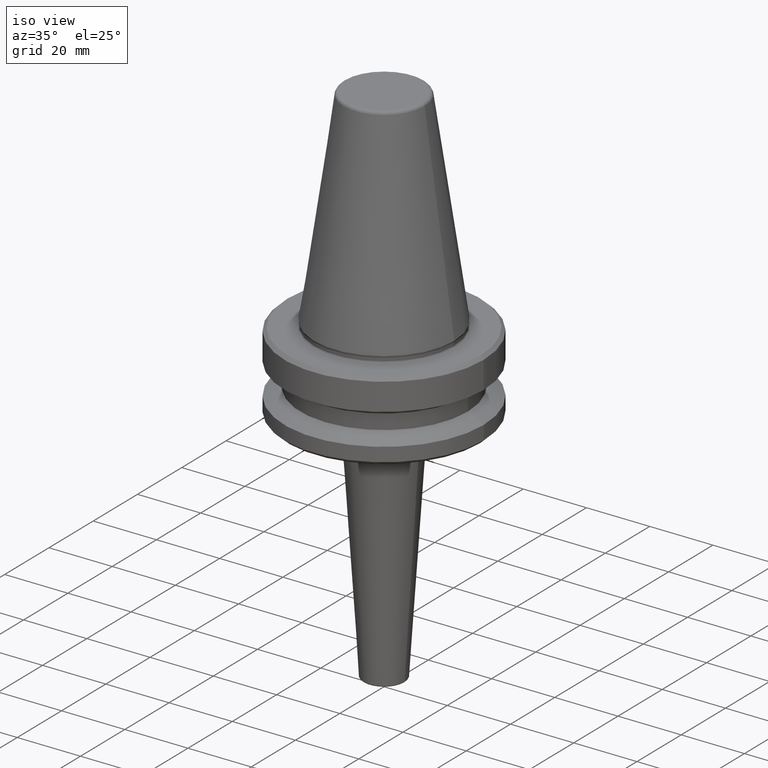
[diagram: clean part render]
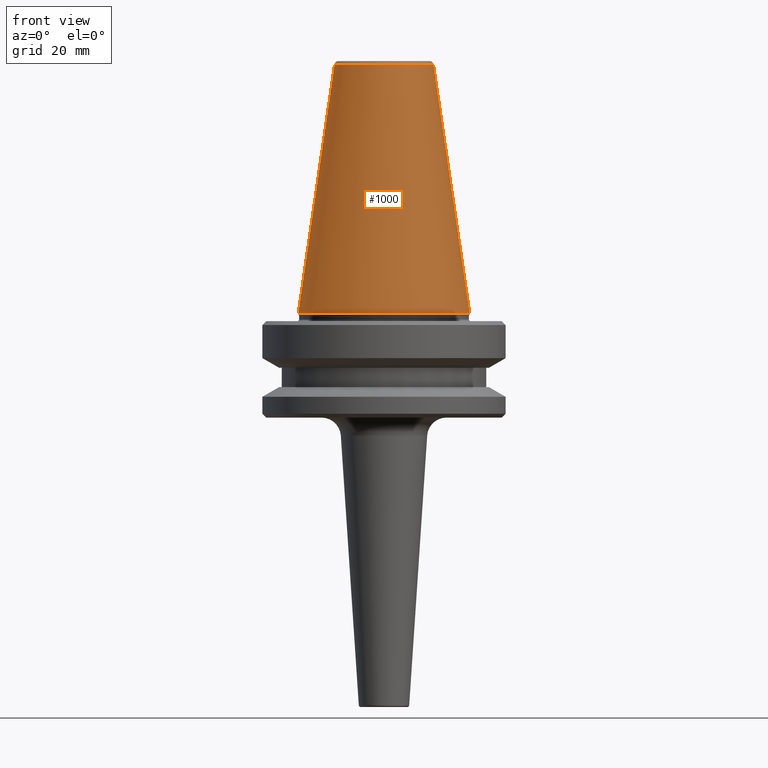
[diagram: tour spotlight — one face highlighted and labeled with its STEP entity id]
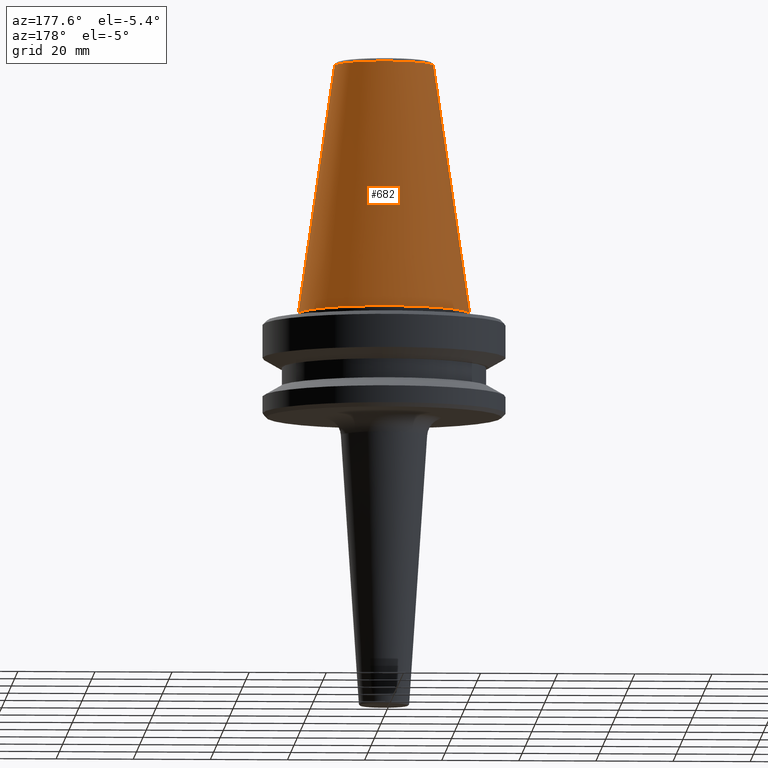
[diagram: tour spotlight — one face highlighted and labeled with its STEP entity id]
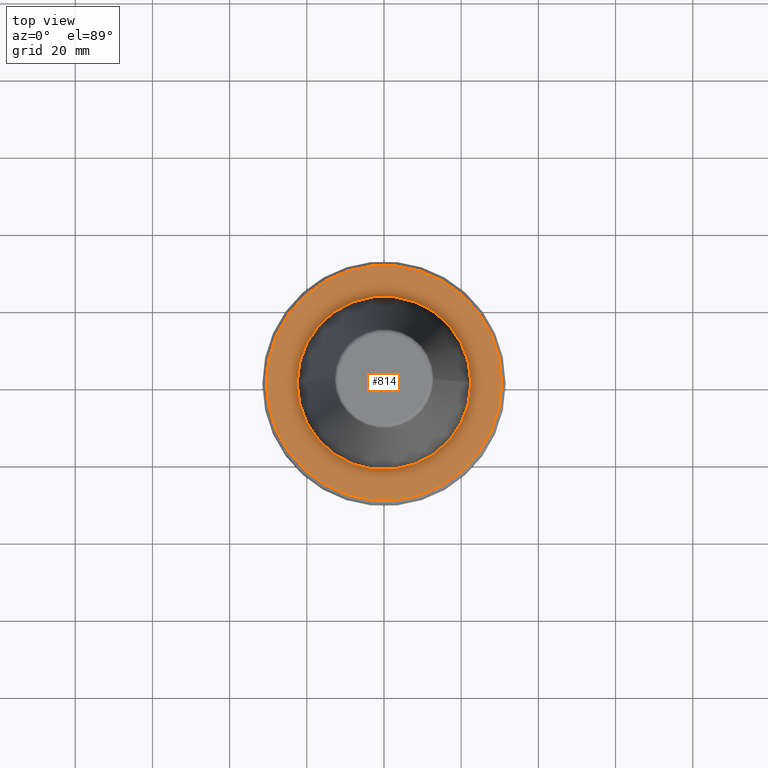
[diagram: tour spotlight — one face highlighted and labeled with its STEP entity id]
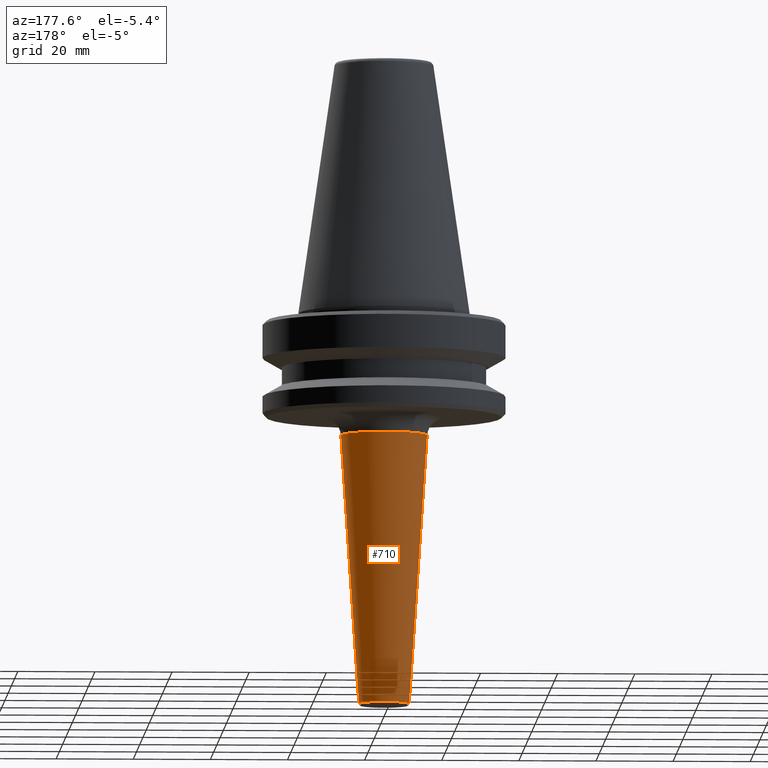
[diagram: tour spotlight — one face highlighted and labeled with its STEP entity id]
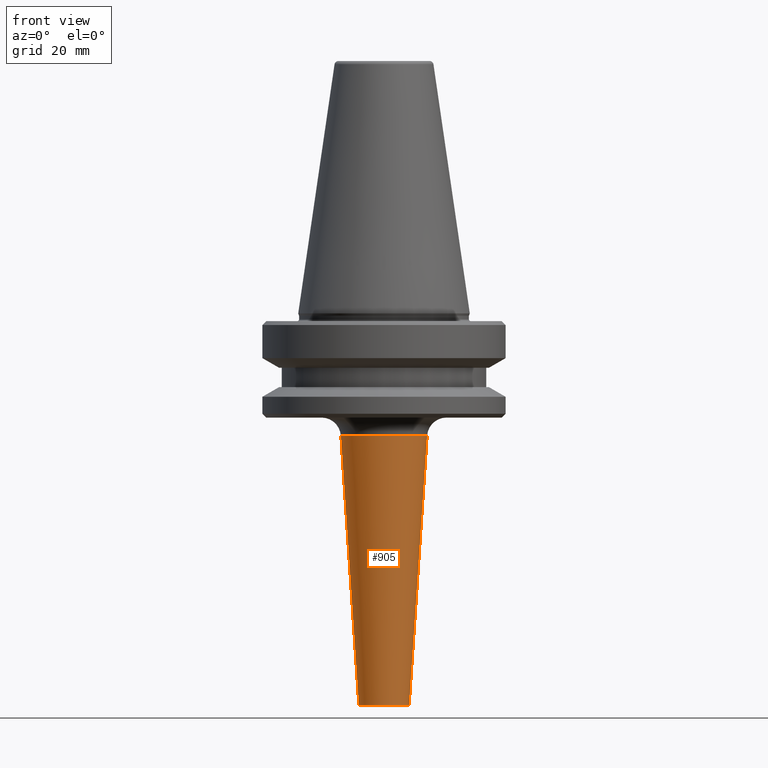
[diagram: tour spotlight — one face highlighted and labeled with its STEP entity id]
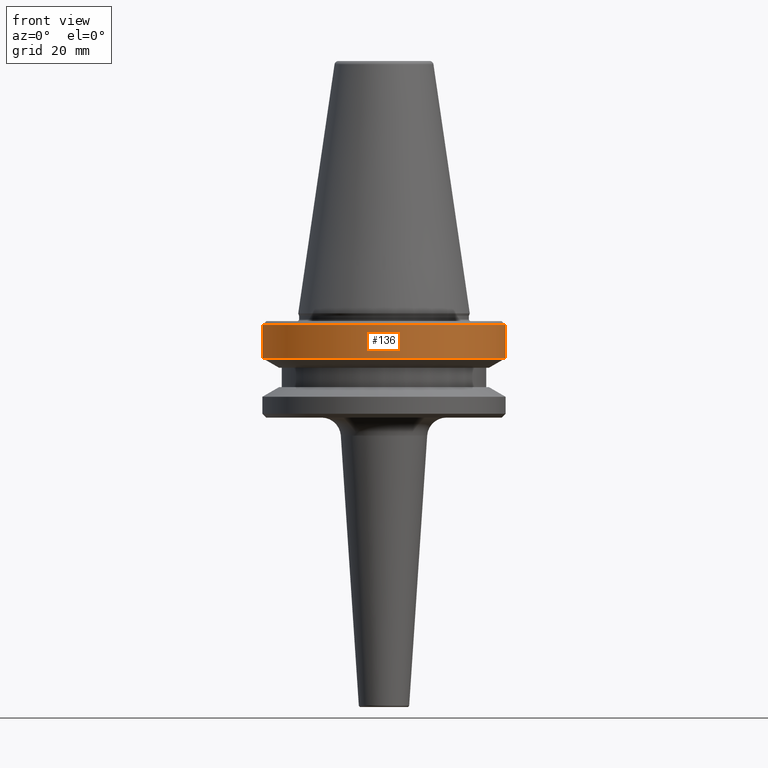
[diagram: tour spotlight — one face highlighted and labeled with its STEP entity id]
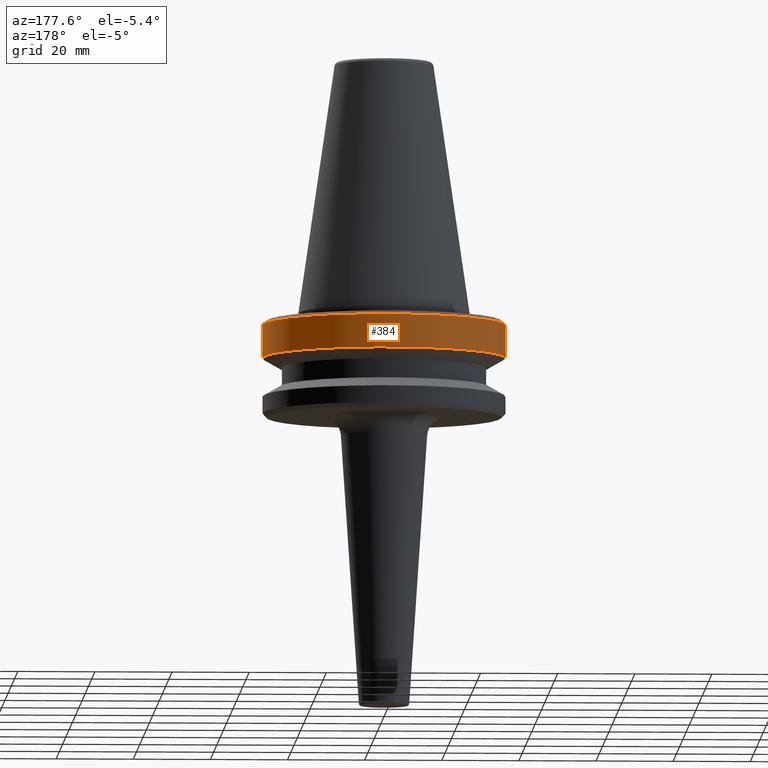
[diagram: tour spotlight — one face highlighted and labeled with its STEP entity id]
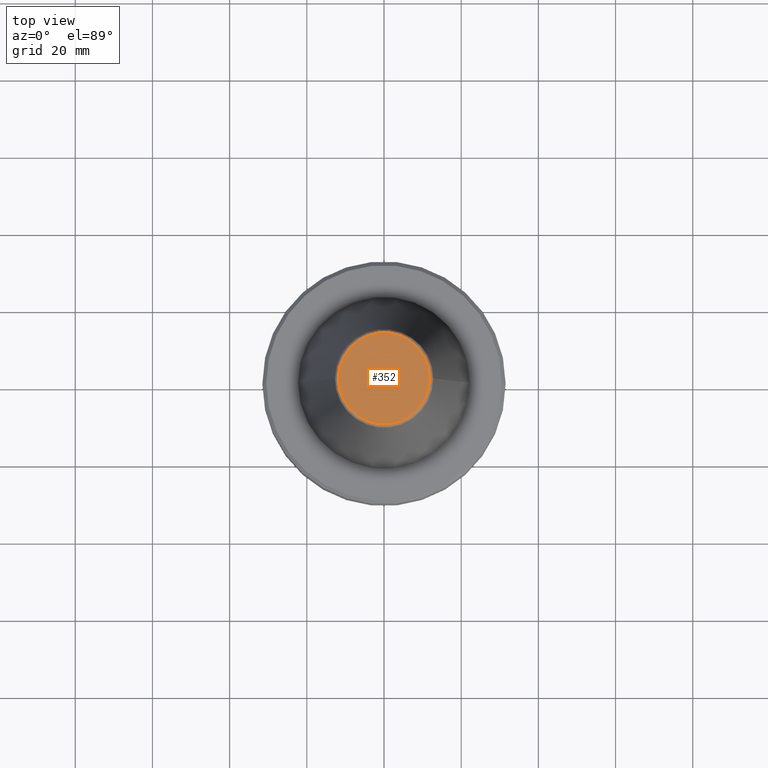
[diagram: tour spotlight — one face highlighted and labeled with its STEP entity id]
A machine part: a face-by-face anatomy tour. The part has 38 B-rep faces; the first image is the clean iso view, then the 8 largest visible faces are spotlighted one at a time (largest first), each with its STEP entity span.

Face 1 — front view, entity #1000. In plain terms, the highlighted conical surface has half-angle 8.297 deg.
Definition (entity closure, byte-faithful):
#28 = CARTESIAN_POINT ( 'NONE',  ( 12.81220206925736900, 2.145409868259749100E-015, -0.8556918111122247000 ) ) ;
#32 = EDGE_CURVE ( 'NONE', #82, #697, #306, .T. ) ;
#82 = VERTEX_POINT ( 'NONE', #517 ) ;
#92 = CONICAL_SURFACE ( 'NONE', #523, 12.81220206925736900, 0.1448138077623198300 ) ;
#94 = DIRECTION ( 'NONE',  ( -0.1443081888881795900, 0.0000000000000000000, -0.9895327920891826600 ) ) ;
#97 = EDGE_LOOP ( 'NONE', ( #888, #815, #692, #746 ) ) ;
#104 = DIRECTION ( 'NONE',  ( 1.000000000000000000, 0.0000000000000000000, 0.0000000000000000000 ) ) ;
#148 = VECTOR ( 'NONE', #94, 1000.000000000000000 ) ;
#203 = EDGE_CURVE ( 'NONE', #622, #635, #550, .T. ) ;
#238 = LINE ( 'NONE', #885, #631 ) ;
#306 = CIRCLE ( 'NONE', #1010, 22.22499999999993700 ) ;
#336 = CARTESIAN_POINT ( 'NONE',  ( 0.0000000000000000000, 0.0000000000000000000, -0.8556918111122247000 ) ) ;
#353 = DIRECTION ( 'NONE',  ( -0.0000000000000000000, -0.0000000000000000000, 1.000000000000000000 ) ) ;
#368 = CARTESIAN_POINT ( 'NONE',  ( -12.81220206925736900, 0.0000000000000000000, -0.8556918111122247000 ) ) ;
#517 = CARTESIAN_POINT ( 'NONE',  ( -22.22499999999993700, 2.721777511104985000E-015, -65.40000000000057400 ) ) ;
#523 = AXIS2_PLACEMENT_3D ( 'NONE', #812, #559, #883 ) ;
#550 = CIRCLE ( 'NONE', #621, 12.81220206925736900 ) ;
#559 = DIRECTION ( 'NONE',  ( 0.0000000000000000000, 0.0000000000000000000, -1.000000000000000000 ) ) ;
#577 = FACE_OUTER_BOUND ( 'NONE', #97, .T. ) ;
#600 = CARTESIAN_POINT ( 'NONE',  ( 22.22499999999993700, 0.0000000000000000000, -65.40000000000057400 ) ) ;
#621 = AXIS2_PLACEMENT_3D ( 'NONE', #336, #877, #104 ) ;
#622 = VERTEX_POINT ( 'NONE', #368 ) ;
#631 = VECTOR ( 'NONE', #723, 1000.000000000000000 ) ;
#635 = VERTEX_POINT ( 'NONE', #28 ) ;
#661 = CARTESIAN_POINT ( 'NONE',  ( -12.81220206925736900, 0.0000000000000000000, -0.8556918111122247000 ) ) ;
#666 = CARTESIAN_POINT ( 'NONE',  ( 0.0000000000000000000, 0.0000000000000000000, -65.40000000000057400 ) ) ;
#672 = EDGE_CURVE ( 'NONE', #635, #697, #238, .T. ) ;
#692 = ORIENTED_EDGE ( 'NONE', *, *, #988, .T. ) ;
#697 = VERTEX_POINT ( 'NONE', #600 ) ;
#723 = DIRECTION ( 'NONE',  ( 0.1443081888881795900, 1.767265616126607700E-017, -0.9895327920891826600 ) ) ;
#741 = DIRECTION ( 'NONE',  ( 1.000000000000000000, 0.0000000000000000000, 0.0000000000000000000 ) ) ;
#746 = ORIENTED_EDGE ( 'NONE', *, *, #32, .T. ) ;
#808 = LINE ( 'NONE', #661, #148 ) ;
#812 = CARTESIAN_POINT ( 'NONE',  ( 0.0000000000000000000, 0.0000000000000000000, -0.8556918111122247000 ) ) ;
#815 = ORIENTED_EDGE ( 'NONE', *, *, #203, .F. ) ;
#877 = DIRECTION ( 'NONE',  ( -0.0000000000000000000, -0.0000000000000000000, 1.000000000000000000 ) ) ;
#883 = DIRECTION ( 'NONE',  ( -1.000000000000000000, 0.0000000000000000000, 0.0000000000000000000 ) ) ;
#885 = CARTESIAN_POINT ( 'NONE',  ( 12.81220206925736900, 1.569042225414513200E-015, -0.8556918111122247000 ) ) ;
#888 = ORIENTED_EDGE ( 'NONE', *, *, #672, .F. ) ;
#988 = EDGE_CURVE ( 'NONE', #622, #82, #808, .T. ) ;
#1000 = ADVANCED_FACE ( 'NONE', ( #577 ), #92, .T. ) ;
#1010 = AXIS2_PLACEMENT_3D ( 'NONE', #666, #353, #741 ) ;

Face 2 — auxiliary view, entity #682. In plain terms, the highlighted conical surface has half-angle 8.297 deg.
Definition (entity closure, byte-faithful):
#13 = FACE_OUTER_BOUND ( 'NONE', #102, .T. ) ;
#28 = CARTESIAN_POINT ( 'NONE',  ( 12.81220206925736900, 2.145409868259749100E-015, -0.8556918111122247000 ) ) ;
#70 = ORIENTED_EDGE ( 'NONE', *, *, #988, .F. ) ;
#82 = VERTEX_POINT ( 'NONE', #517 ) ;
#94 = DIRECTION ( 'NONE',  ( -0.1443081888881795900, 0.0000000000000000000, -0.9895327920891826600 ) ) ;
#102 = EDGE_LOOP ( 'NONE', ( #737, #398, #166, #70 ) ) ;
#148 = VECTOR ( 'NONE', #94, 1000.000000000000000 ) ;
#166 = ORIENTED_EDGE ( 'NONE', *, *, #1049, .T. ) ;
#188 = CIRCLE ( 'NONE', #1034, 12.81220206925736900 ) ;
#232 = CARTESIAN_POINT ( 'NONE',  ( 0.0000000000000000000, 0.0000000000000000000, -0.8556918111122247000 ) ) ;
#238 = LINE ( 'NONE', #885, #631 ) ;
#312 = AXIS2_PLACEMENT_3D ( 'NONE', #495, #875, #423 ) ;
#368 = CARTESIAN_POINT ( 'NONE',  ( -12.81220206925736900, 0.0000000000000000000, -0.8556918111122247000 ) ) ;
#398 = ORIENTED_EDGE ( 'NONE', *, *, #672, .T. ) ;
#423 = DIRECTION ( 'NONE',  ( 1.000000000000000000, 0.0000000000000000000, 0.0000000000000000000 ) ) ;
#476 = CIRCLE ( 'NONE', #312, 22.22499999999993700 ) ;
#495 = CARTESIAN_POINT ( 'NONE',  ( 0.0000000000000000000, 0.0000000000000000000, -65.40000000000057400 ) ) ;
#517 = CARTESIAN_POINT ( 'NONE',  ( -22.22499999999993700, 2.721777511104985000E-015, -65.40000000000057400 ) ) ;
#544 = DIRECTION ( 'NONE',  ( 1.000000000000000000, 0.0000000000000000000, 0.0000000000000000000 ) ) ;
#590 = CONICAL_SURFACE ( 'NONE', #979, 12.81220206925736900, 0.1448138077623198300 ) ;
#600 = CARTESIAN_POINT ( 'NONE',  ( 22.22499999999993700, 0.0000000000000000000, -65.40000000000057400 ) ) ;
#622 = VERTEX_POINT ( 'NONE', #368 ) ;
#631 = VECTOR ( 'NONE', #723, 1000.000000000000000 ) ;
#635 = VERTEX_POINT ( 'NONE', #28 ) ;
#661 = CARTESIAN_POINT ( 'NONE',  ( -12.81220206925736900, 0.0000000000000000000, -0.8556918111122247000 ) ) ;
#672 = EDGE_CURVE ( 'NONE', #635, #697, #238, .T. ) ;
#682 = ADVANCED_FACE ( 'NONE', ( #13 ), #590, .T. ) ;
#697 = VERTEX_POINT ( 'NONE', #600 ) ;
#700 = DIRECTION ( 'NONE',  ( -0.0000000000000000000, -0.0000000000000000000, 1.000000000000000000 ) ) ;
#723 = DIRECTION ( 'NONE',  ( 0.1443081888881795900, 1.767265616126607700E-017, -0.9895327920891826600 ) ) ;
#735 = EDGE_CURVE ( 'NONE', #635, #622, #188, .T. ) ;
#737 = ORIENTED_EDGE ( 'NONE', *, *, #735, .F. ) ;
#747 = DIRECTION ( 'NONE',  ( -1.000000000000000000, 0.0000000000000000000, 0.0000000000000000000 ) ) ;
#808 = LINE ( 'NONE', #661, #148 ) ;
#875 = DIRECTION ( 'NONE',  ( -0.0000000000000000000, -0.0000000000000000000, 1.000000000000000000 ) ) ;
#885 = CARTESIAN_POINT ( 'NONE',  ( 12.81220206925736900, 1.569042225414513200E-015, -0.8556918111122247000 ) ) ;
#890 = CARTESIAN_POINT ( 'NONE',  ( 0.0000000000000000000, 0.0000000000000000000, -0.8556918111122247000 ) ) ;
#979 = AXIS2_PLACEMENT_3D ( 'NONE', #890, #983, #747 ) ;
#983 = DIRECTION ( 'NONE',  ( 0.0000000000000000000, 0.0000000000000000000, -1.000000000000000000 ) ) ;
#988 = EDGE_CURVE ( 'NONE', #622, #82, #808, .T. ) ;
#1034 = AXIS2_PLACEMENT_3D ( 'NONE', #232, #700, #544 ) ;
#1049 = EDGE_CURVE ( 'NONE', #697, #82, #476, .T. ) ;

Face 3 — top view, entity #814. In plain terms, the highlighted planar face has unit normal (0, 0, -1).
Definition (entity closure, byte-faithful):
#73 = DIRECTION ( 'NONE',  ( 0.0000000000000000000, 0.0000000000000000000, -1.000000000000000000 ) ) ;
#81 = AXIS2_PLACEMENT_3D ( 'NONE', #757, #73, #366 ) ;
#111 = AXIS2_PLACEMENT_3D ( 'NONE', #637, #162, #1044 ) ;
#162 = DIRECTION ( 'NONE',  ( -0.0000000000000000000, -0.0000000000000000000, 1.000000000000000000 ) ) ;
#174 = DIRECTION ( 'NONE',  ( -0.0000000000000000000, -0.0000000000000000000, 1.000000000000000000 ) ) ;
#201 = EDGE_CURVE ( 'NONE', #365, #490, #341, .T. ) ;
#235 = FACE_OUTER_BOUND ( 'NONE', #314, .T. ) ;
#260 = CARTESIAN_POINT ( 'NONE',  ( 0.0000000000000000000, 0.0000000000000000000, -67.40000000000034700 ) ) ;
#280 = CARTESIAN_POINT ( 'NONE',  ( 0.0000000000000000000, 0.0000000000000000000, -67.40000000000034700 ) ) ;
#290 = ORIENTED_EDGE ( 'NONE', *, *, #471, .F. ) ;
#314 = EDGE_LOOP ( 'NONE', ( #552, #762 ) ) ;
#321 = AXIS2_PLACEMENT_3D ( 'NONE', #574, #617, #693 ) ;
#333 = EDGE_LOOP ( 'NONE', ( #290, #343 ) ) ;
#341 = CIRCLE ( 'NONE', #321, 30.49999999999997200 ) ;
#343 = ORIENTED_EDGE ( 'NONE', *, *, #995, .F. ) ;
#365 = VERTEX_POINT ( 'NONE', #586 ) ;
#366 = DIRECTION ( 'NONE',  ( -1.000000000000000000, 0.0000000000000000000, -0.0000000000000000000 ) ) ;
#442 = DIRECTION ( 'NONE',  ( -0.0000000000000000000, -0.0000000000000000000, 1.000000000000000000 ) ) ;
#459 = AXIS2_PLACEMENT_3D ( 'NONE', #280, #442, #651 ) ;
#471 = EDGE_CURVE ( 'NONE', #519, #547, #1013, .T. ) ;
#490 = VERTEX_POINT ( 'NONE', #806 ) ;
#519 = VERTEX_POINT ( 'NONE', #873 ) ;
#547 = VERTEX_POINT ( 'NONE', #991 ) ;
#552 = ORIENTED_EDGE ( 'NONE', *, *, #201, .T. ) ;
#574 = CARTESIAN_POINT ( 'NONE',  ( 0.0000000000000000000, 0.0000000000000000000, -67.40000000000034700 ) ) ;
#586 = CARTESIAN_POINT ( 'NONE',  ( -30.49999999999997200, 0.0000000000000000000, -67.40000000000034700 ) ) ;
#617 = DIRECTION ( 'NONE',  ( -0.0000000000000000000, -0.0000000000000000000, 1.000000000000000000 ) ) ;
#637 = CARTESIAN_POINT ( 'NONE',  ( 0.0000000000000000000, 0.0000000000000000000, -67.40000000000034700 ) ) ;
#651 = DIRECTION ( 'NONE',  ( 1.000000000000000000, 0.0000000000000000000, 0.0000000000000000000 ) ) ;
#655 = DIRECTION ( 'NONE',  ( 1.000000000000000000, 0.0000000000000000000, 0.0000000000000000000 ) ) ;
#693 = DIRECTION ( 'NONE',  ( 1.000000000000000000, 0.0000000000000000000, 0.0000000000000000000 ) ) ;
#757 = CARTESIAN_POINT ( 'NONE',  ( 0.0000000000000000000, 0.0000000000000000000, -67.40000000000034700 ) ) ;
#759 = CIRCLE ( 'NONE', #111, 22.49999999999996400 ) ;
#762 = ORIENTED_EDGE ( 'NONE', *, *, #1024, .T. ) ;
#806 = CARTESIAN_POINT ( 'NONE',  ( 30.49999999999997200, 3.796405077356798300E-015, -67.40000000000034700 ) ) ;
#810 = FACE_BOUND ( 'NONE', #333, .T. ) ;
#814 = ADVANCED_FACE ( 'NONE', ( #810, #235 ), #955, .F. ) ;
#873 = CARTESIAN_POINT ( 'NONE',  ( 22.49999999999996400, 0.0000000000000000000, -67.40000000000034700 ) ) ;
#942 = CIRCLE ( 'NONE', #1050, 30.49999999999997200 ) ;
#955 = PLANE ( 'NONE',  #81 ) ;
#991 = CARTESIAN_POINT ( 'NONE',  ( -22.49999999999996400, 2.755455298081540400E-015, -67.40000000000034700 ) ) ;
#995 = EDGE_CURVE ( 'NONE', #547, #519, #759, .T. ) ;
#1013 = CIRCLE ( 'NONE', #459, 22.49999999999996400 ) ;
#1024 = EDGE_CURVE ( 'NONE', #490, #365, #942, .T. ) ;
#1044 = DIRECTION ( 'NONE',  ( 1.000000000000000000, 0.0000000000000000000, 0.0000000000000000000 ) ) ;
#1050 = AXIS2_PLACEMENT_3D ( 'NONE', #260, #174, #655 ) ;

Face 4 — auxiliary view, entity #710. In plain terms, the highlighted conical surface has half-angle 3.814 deg.
Definition (entity closure, byte-faithful):
#4 = VECTOR ( 'NONE', #320, 1000.000000000000000 ) ;
#31 = CARTESIAN_POINT ( 'NONE',  ( -11.18883967017459600, 1.675721268776682900E-015, -97.06740494738922100 ) ) ;
#34 = CIRCLE ( 'NONE', #644, 11.18883967017459600 ) ;
#69 = DIRECTION ( 'NONE',  ( -0.0000000000000000000, -0.0000000000000000000, 1.000000000000000000 ) ) ;
#114 = CARTESIAN_POINT ( 'NONE',  ( -6.531116032982522400, 7.998310344652004600E-016, -166.9332595052702600 ) ) ;
#157 = DIRECTION ( 'NONE',  ( 1.000000000000000000, 0.0000000000000000000, 0.0000000000000000000 ) ) ;
#180 = ORIENTED_EDGE ( 'NONE', *, *, #813, .T. ) ;
#216 = EDGE_LOOP ( 'NONE', ( #515, #180, #561, #916 ) ) ;
#304 = DIRECTION ( 'NONE',  ( 1.000000000000000000, 0.0000000000000000000, 0.0000000000000000000 ) ) ;
#320 = DIRECTION ( 'NONE',  ( -0.06651901052377395800, 8.146229332038887700E-018, 0.9977851578566089300 ) ) ;
#325 = DIRECTION ( 'NONE',  ( 1.000000000000000000, 0.0000000000000000000, 0.0000000000000000000 ) ) ;
#379 = CARTESIAN_POINT ( 'NONE',  ( 11.18883967017459600, 0.0000000000000000000, -97.06740494738922100 ) ) ;
#400 = EDGE_CURVE ( 'NONE', #945, #799, #860, .T. ) ;
#411 = CARTESIAN_POINT ( 'NONE',  ( -11.18883967017459600, 1.370237668825224800E-015, -97.06740494738922100 ) ) ;
#461 = VECTOR ( 'NONE', #731, 1000.000000000000000 ) ;
#484 = CARTESIAN_POINT ( 'NONE',  ( 11.18883967017459600, 0.0000000000000000000, -97.06740494738922100 ) ) ;
#515 = ORIENTED_EDGE ( 'NONE', *, *, #664, .T. ) ;
#548 = DIRECTION ( 'NONE',  ( -0.0000000000000000000, -0.0000000000000000000, 1.000000000000000000 ) ) ;
#561 = ORIENTED_EDGE ( 'NONE', *, *, #775, .F. ) ;
#615 = CONICAL_SURFACE ( 'NONE', #941, 11.18883967017459600, 0.06656816377582383500 ) ;
#644 = AXIS2_PLACEMENT_3D ( 'NONE', #715, #69, #157 ) ;
#664 = EDGE_CURVE ( 'NONE', #945, #934, #882, .T. ) ;
#710 = ADVANCED_FACE ( 'NONE', ( #817 ), #615, .T. ) ;
#715 = CARTESIAN_POINT ( 'NONE',  ( 0.0000000000000000000, 0.0000000000000000000, -97.06740494738922100 ) ) ;
#731 = DIRECTION ( 'NONE',  ( 0.06651901052377395800, 0.0000000000000000000, 0.9977851578566089300 ) ) ;
#743 = CARTESIAN_POINT ( 'NONE',  ( 6.531116032982522400, 0.0000000000000000000, -166.9332595052702600 ) ) ;
#773 = CARTESIAN_POINT ( 'NONE',  ( 0.0000000000000000000, 0.0000000000000000000, -166.9332595052702600 ) ) ;
#775 = EDGE_CURVE ( 'NONE', #799, #963, #34, .T. ) ;
#799 = VERTEX_POINT ( 'NONE', #484 ) ;
#813 = EDGE_CURVE ( 'NONE', #934, #963, #832, .T. ) ;
#817 = FACE_OUTER_BOUND ( 'NONE', #216, .T. ) ;
#832 = LINE ( 'NONE', #411, #4 ) ;
#854 = CARTESIAN_POINT ( 'NONE',  ( 0.0000000000000000000, 0.0000000000000000000, -97.06740494738922100 ) ) ;
#860 = LINE ( 'NONE', #379, #461 ) ;
#882 = CIRCLE ( 'NONE', #902, 6.531116032982525100 ) ;
#902 = AXIS2_PLACEMENT_3D ( 'NONE', #773, #994, #325 ) ;
#916 = ORIENTED_EDGE ( 'NONE', *, *, #400, .F. ) ;
#934 = VERTEX_POINT ( 'NONE', #114 ) ;
#941 = AXIS2_PLACEMENT_3D ( 'NONE', #854, #548, #304 ) ;
#945 = VERTEX_POINT ( 'NONE', #743 ) ;
#963 = VERTEX_POINT ( 'NONE', #31 ) ;
#994 = DIRECTION ( 'NONE',  ( -0.0000000000000000000, -0.0000000000000000000, 1.000000000000000000 ) ) ;

Face 5 — front view, entity #905. In plain terms, the highlighted conical surface has half-angle 3.814 deg.
Definition (entity closure, byte-faithful):
#4 = VECTOR ( 'NONE', #320, 1000.000000000000000 ) ;
#9 = DIRECTION ( 'NONE',  ( -0.0000000000000000000, -0.0000000000000000000, 1.000000000000000000 ) ) ;
#16 = CIRCLE ( 'NONE', #346, 6.531116032982525100 ) ;
#31 = CARTESIAN_POINT ( 'NONE',  ( -11.18883967017459600, 1.675721268776682900E-015, -97.06740494738922100 ) ) ;
#59 = AXIS2_PLACEMENT_3D ( 'NONE', #345, #9, #185 ) ;
#114 = CARTESIAN_POINT ( 'NONE',  ( -6.531116032982522400, 7.998310344652004600E-016, -166.9332595052702600 ) ) ;
#185 = DIRECTION ( 'NONE',  ( 1.000000000000000000, 0.0000000000000000000, 0.0000000000000000000 ) ) ;
#234 = ORIENTED_EDGE ( 'NONE', *, *, #400, .T. ) ;
#281 = DIRECTION ( 'NONE',  ( 1.000000000000000000, 0.0000000000000000000, 0.0000000000000000000 ) ) ;
#320 = DIRECTION ( 'NONE',  ( -0.06651901052377395800, 8.146229332038887700E-018, 0.9977851578566089300 ) ) ;
#345 = CARTESIAN_POINT ( 'NONE',  ( 0.0000000000000000000, 0.0000000000000000000, -97.06740494738922100 ) ) ;
#346 = AXIS2_PLACEMENT_3D ( 'NONE', #647, #1026, #489 ) ;
#359 = ORIENTED_EDGE ( 'NONE', *, *, #436, .T. ) ;
#375 = CARTESIAN_POINT ( 'NONE',  ( 0.0000000000000000000, 0.0000000000000000000, -97.06740494738922100 ) ) ;
#379 = CARTESIAN_POINT ( 'NONE',  ( 11.18883967017459600, 0.0000000000000000000, -97.06740494738922100 ) ) ;
#381 = DIRECTION ( 'NONE',  ( -0.0000000000000000000, -0.0000000000000000000, 1.000000000000000000 ) ) ;
#400 = EDGE_CURVE ( 'NONE', #945, #799, #860, .T. ) ;
#411 = CARTESIAN_POINT ( 'NONE',  ( -11.18883967017459600, 1.370237668825224800E-015, -97.06740494738922100 ) ) ;
#436 = EDGE_CURVE ( 'NONE', #934, #945, #16, .T. ) ;
#461 = VECTOR ( 'NONE', #731, 1000.000000000000000 ) ;
#466 = ORIENTED_EDGE ( 'NONE', *, *, #813, .F. ) ;
#484 = CARTESIAN_POINT ( 'NONE',  ( 11.18883967017459600, 0.0000000000000000000, -97.06740494738922100 ) ) ;
#489 = DIRECTION ( 'NONE',  ( 1.000000000000000000, 0.0000000000000000000, 0.0000000000000000000 ) ) ;
#647 = CARTESIAN_POINT ( 'NONE',  ( 0.0000000000000000000, 0.0000000000000000000, -166.9332595052702600 ) ) ;
#731 = DIRECTION ( 'NONE',  ( 0.06651901052377395800, 0.0000000000000000000, 0.9977851578566089300 ) ) ;
#738 = FACE_OUTER_BOUND ( 'NONE', #866, .T. ) ;
#743 = CARTESIAN_POINT ( 'NONE',  ( 6.531116032982522400, 0.0000000000000000000, -166.9332595052702600 ) ) ;
#751 = ORIENTED_EDGE ( 'NONE', *, *, #982, .F. ) ;
#787 = CIRCLE ( 'NONE', #59, 11.18883967017459600 ) ;
#796 = CONICAL_SURFACE ( 'NONE', #835, 11.18883967017459600, 0.06656816377582383500 ) ;
#799 = VERTEX_POINT ( 'NONE', #484 ) ;
#813 = EDGE_CURVE ( 'NONE', #934, #963, #832, .T. ) ;
#832 = LINE ( 'NONE', #411, #4 ) ;
#835 = AXIS2_PLACEMENT_3D ( 'NONE', #375, #381, #281 ) ;
#860 = LINE ( 'NONE', #379, #461 ) ;
#866 = EDGE_LOOP ( 'NONE', ( #466, #359, #234, #751 ) ) ;
#905 = ADVANCED_FACE ( 'NONE', ( #738 ), #796, .T. ) ;
#934 = VERTEX_POINT ( 'NONE', #114 ) ;
#945 = VERTEX_POINT ( 'NONE', #743 ) ;
#963 = VERTEX_POINT ( 'NONE', #31 ) ;
#982 = EDGE_CURVE ( 'NONE', #963, #799, #787, .T. ) ;
#1026 = DIRECTION ( 'NONE',  ( -0.0000000000000000000, -0.0000000000000000000, 1.000000000000000000 ) ) ;

Face 6 — front view, entity #136. In plain terms, the highlighted cylindrical surface (partial cylindrical patch) has radius 31.5 mm, axis along (-0, -0, 1).
Definition (entity closure, byte-faithful):
#25 = CARTESIAN_POINT ( 'NONE',  ( 0.0000000000000000000, 0.0000000000000000000, 6.357346922996331500 ) ) ;
#40 = VECTOR ( 'NONE', #1051, 1000.000000000000000 ) ;
#85 = VERTEX_POINT ( 'NONE', #474 ) ;
#124 = CIRCLE ( 'NONE', #245, 31.50000000000008500 ) ;
#129 = CARTESIAN_POINT ( 'NONE',  ( -31.50000000000008500, 3.857637417314172900E-015, -68.40000000000046000 ) ) ;
#136 = ADVANCED_FACE ( 'NONE', ( #630 ), #816, .T. ) ;
#171 = CARTESIAN_POINT ( 'NONE',  ( 31.50000000000008500, 0.0000000000000000000, -68.40000000000046000 ) ) ;
#193 = DIRECTION ( 'NONE',  ( 1.000000000000000000, 0.0000000000000000000, 0.0000000000000000000 ) ) ;
#222 = VERTEX_POINT ( 'NONE', #129 ) ;
#229 = EDGE_CURVE ( 'NONE', #85, #271, #736, .T. ) ;
#231 = AXIS2_PLACEMENT_3D ( 'NONE', #724, #417, #825 ) ;
#245 = AXIS2_PLACEMENT_3D ( 'NONE', #329, #962, #598 ) ;
#254 = VECTOR ( 'NONE', #628, 1000.000000000000000 ) ;
#271 = VERTEX_POINT ( 'NONE', #273 ) ;
#273 = CARTESIAN_POINT ( 'NONE',  ( 31.50000000000008500, 0.0000000000000000000, -76.99985799368391800 ) ) ;
#277 = EDGE_CURVE ( 'NONE', #222, #480, #124, .T. ) ;
#329 = CARTESIAN_POINT ( 'NONE',  ( 0.0000000000000000000, 0.0000000000000000000, -68.40000000000046000 ) ) ;
#374 = AXIS2_PLACEMENT_3D ( 'NONE', #25, #596, #193 ) ;
#388 = LINE ( 'NONE', #947, #254 ) ;
#407 = ORIENTED_EDGE ( 'NONE', *, *, #761, .F. ) ;
#417 = DIRECTION ( 'NONE',  ( -0.0000000000000000000, -0.0000000000000000000, 1.000000000000000000 ) ) ;
#474 = CARTESIAN_POINT ( 'NONE',  ( -31.50000000000008500, 3.857637417314172900E-015, -76.99985799368391800 ) ) ;
#480 = VERTEX_POINT ( 'NONE', #171 ) ;
#501 = LINE ( 'NONE', #805, #40 ) ;
#596 = DIRECTION ( 'NONE',  ( -0.0000000000000000000, -0.0000000000000000000, 1.000000000000000000 ) ) ;
#598 = DIRECTION ( 'NONE',  ( 1.000000000000000000, 0.0000000000000000000, 0.0000000000000000000 ) ) ;
#628 = DIRECTION ( 'NONE',  ( -0.0000000000000000000, -0.0000000000000000000, 1.000000000000000000 ) ) ;
#630 = FACE_OUTER_BOUND ( 'NONE', #953, .T. ) ;
#690 = ORIENTED_EDGE ( 'NONE', *, *, #277, .F. ) ;
#724 = CARTESIAN_POINT ( 'NONE',  ( 0.0000000000000000000, 0.0000000000000000000, -76.99985799368391800 ) ) ;
#736 = CIRCLE ( 'NONE', #231, 31.50000000000008500 ) ;
#761 = EDGE_CURVE ( 'NONE', #85, #222, #388, .T. ) ;
#794 = ORIENTED_EDGE ( 'NONE', *, *, #1054, .T. ) ;
#805 = CARTESIAN_POINT ( 'NONE',  ( 31.50000000000008500, 0.0000000000000000000, 6.357346922996331500 ) ) ;
#816 = CYLINDRICAL_SURFACE ( 'NONE', #374, 31.50000000000008500 ) ;
#825 = DIRECTION ( 'NONE',  ( 1.000000000000000000, 0.0000000000000000000, 0.0000000000000000000 ) ) ;
#947 = CARTESIAN_POINT ( 'NONE',  ( -31.50000000000008500, 3.857637417314172900E-015, 6.357346922996331500 ) ) ;
#953 = EDGE_LOOP ( 'NONE', ( #407, #1005, #794, #690 ) ) ;
#962 = DIRECTION ( 'NONE',  ( -0.0000000000000000000, -0.0000000000000000000, 1.000000000000000000 ) ) ;
#1005 = ORIENTED_EDGE ( 'NONE', *, *, #229, .T. ) ;
#1051 = DIRECTION ( 'NONE',  ( -0.0000000000000000000, -0.0000000000000000000, 1.000000000000000000 ) ) ;
#1054 = EDGE_CURVE ( 'NONE', #271, #480, #501, .T. ) ;

Face 7 — auxiliary view, entity #384. In plain terms, the highlighted cylindrical surface (partial cylindrical patch) has radius 31.5 mm, axis along (-0, -0, 1).
Definition (entity closure, byte-faithful):
#40 = VECTOR ( 'NONE', #1051, 1000.000000000000000 ) ;
#85 = VERTEX_POINT ( 'NONE', #474 ) ;
#86 = DIRECTION ( 'NONE',  ( 1.000000000000000000, 0.0000000000000000000, 0.0000000000000000000 ) ) ;
#93 = CYLINDRICAL_SURFACE ( 'NONE', #282, 31.50000000000008500 ) ;
#129 = CARTESIAN_POINT ( 'NONE',  ( -31.50000000000008500, 3.857637417314172900E-015, -68.40000000000046000 ) ) ;
#153 = AXIS2_PLACEMENT_3D ( 'NONE', #221, #714, #900 ) ;
#171 = CARTESIAN_POINT ( 'NONE',  ( 31.50000000000008500, 0.0000000000000000000, -68.40000000000046000 ) ) ;
#200 = CARTESIAN_POINT ( 'NONE',  ( 0.0000000000000000000, 0.0000000000000000000, 6.357346922996331500 ) ) ;
#221 = CARTESIAN_POINT ( 'NONE',  ( 0.0000000000000000000, 0.0000000000000000000, -76.99985799368391800 ) ) ;
#222 = VERTEX_POINT ( 'NONE', #129 ) ;
#254 = VECTOR ( 'NONE', #628, 1000.000000000000000 ) ;
#271 = VERTEX_POINT ( 'NONE', #273 ) ;
#273 = CARTESIAN_POINT ( 'NONE',  ( 31.50000000000008500, 0.0000000000000000000, -76.99985799368391800 ) ) ;
#282 = AXIS2_PLACEMENT_3D ( 'NONE', #200, #486, #86 ) ;
#284 = CIRCLE ( 'NONE', #554, 31.50000000000008500 ) ;
#297 = CARTESIAN_POINT ( 'NONE',  ( 0.0000000000000000000, 0.0000000000000000000, -68.40000000000046000 ) ) ;
#384 = ADVANCED_FACE ( 'NONE', ( #663 ), #93, .T. ) ;
#388 = LINE ( 'NONE', #947, #254 ) ;
#441 = EDGE_LOOP ( 'NONE', ( #980, #769, #911, #893 ) ) ;
#445 = DIRECTION ( 'NONE',  ( 1.000000000000000000, 0.0000000000000000000, 0.0000000000000000000 ) ) ;
#474 = CARTESIAN_POINT ( 'NONE',  ( -31.50000000000008500, 3.857637417314172900E-015, -76.99985799368391800 ) ) ;
#480 = VERTEX_POINT ( 'NONE', #171 ) ;
#486 = DIRECTION ( 'NONE',  ( -0.0000000000000000000, -0.0000000000000000000, 1.000000000000000000 ) ) ;
#501 = LINE ( 'NONE', #805, #40 ) ;
#524 = EDGE_CURVE ( 'NONE', #271, #85, #730, .T. ) ;
#554 = AXIS2_PLACEMENT_3D ( 'NONE', #297, #563, #445 ) ;
#563 = DIRECTION ( 'NONE',  ( -0.0000000000000000000, -0.0000000000000000000, 1.000000000000000000 ) ) ;
#625 = EDGE_CURVE ( 'NONE', #480, #222, #284, .T. ) ;
#628 = DIRECTION ( 'NONE',  ( -0.0000000000000000000, -0.0000000000000000000, 1.000000000000000000 ) ) ;
#663 = FACE_OUTER_BOUND ( 'NONE', #441, .T. ) ;
#714 = DIRECTION ( 'NONE',  ( -0.0000000000000000000, -0.0000000000000000000, 1.000000000000000000 ) ) ;
#730 = CIRCLE ( 'NONE', #153, 31.50000000000008500 ) ;
#761 = EDGE_CURVE ( 'NONE', #85, #222, #388, .T. ) ;
#769 = ORIENTED_EDGE ( 'NONE', *, *, #761, .T. ) ;
#805 = CARTESIAN_POINT ( 'NONE',  ( 31.50000000000008500, 0.0000000000000000000, 6.357346922996331500 ) ) ;
#893 = ORIENTED_EDGE ( 'NONE', *, *, #1054, .F. ) ;
#900 = DIRECTION ( 'NONE',  ( 1.000000000000000000, 0.0000000000000000000, 0.0000000000000000000 ) ) ;
#911 = ORIENTED_EDGE ( 'NONE', *, *, #625, .F. ) ;
#947 = CARTESIAN_POINT ( 'NONE',  ( -31.50000000000008500, 3.857637417314172900E-015, 6.357346922996331500 ) ) ;
#980 = ORIENTED_EDGE ( 'NONE', *, *, #524, .T. ) ;
#1051 = DIRECTION ( 'NONE',  ( -0.0000000000000000000, -0.0000000000000000000, 1.000000000000000000 ) ) ;
#1054 = EDGE_CURVE ( 'NONE', #271, #480, #501, .T. ) ;

Face 8 — top view, entity #352. In plain terms, the highlighted planar face has unit normal (0, 0, -1).
Definition (entity closure, byte-faithful):
#78 = DIRECTION ( 'NONE',  ( -1.000000000000000000, 0.0000000000000000000, -0.0000000000000000000 ) ) ;
#113 = CARTESIAN_POINT ( 'NONE',  ( 0.0000000000000000000, 0.0000000000000000000, -4.440892098500626200E-013 ) ) ;
#125 = EDGE_CURVE ( 'NONE', #821, #886, #237, .T. ) ;
#237 = CIRCLE ( 'NONE', #532, 11.82266927716813000 ) ;
#274 = AXIS2_PLACEMENT_3D ( 'NONE', #113, #514, #78 ) ;
#289 = FACE_OUTER_BOUND ( 'NONE', #1048, .T. ) ;
#352 = ADVANCED_FACE ( 'NONE', ( #289 ), #363, .F. ) ;
#363 = PLANE ( 'NONE',  #274 ) ;
#390 = AXIS2_PLACEMENT_3D ( 'NONE', #558, #1039, #949 ) ;
#416 = CARTESIAN_POINT ( 'NONE',  ( -11.82266927716813000, 1.508450817090336800E-015, -4.440892098500626200E-013 ) ) ;
#453 = CIRCLE ( 'NONE', #390, 11.82266927716813000 ) ;
#514 = DIRECTION ( 'NONE',  ( 0.0000000000000000000, 0.0000000000000000000, -1.000000000000000000 ) ) ;
#532 = AXIS2_PLACEMENT_3D ( 'NONE', #542, #981, #719 ) ;
#542 = CARTESIAN_POINT ( 'NONE',  ( 0.0000000000000000000, 0.0000000000000000000, -4.440892098500626200E-013 ) ) ;
#558 = CARTESIAN_POINT ( 'NONE',  ( 0.0000000000000000000, 0.0000000000000000000, -4.440892098500626200E-013 ) ) ;
#719 = DIRECTION ( 'NONE',  ( 1.000000000000000000, 0.0000000000000000000, 0.0000000000000000000 ) ) ;
#740 = ORIENTED_EDGE ( 'NONE', *, *, #779, .T. ) ;
#765 = ORIENTED_EDGE ( 'NONE', *, *, #125, .T. ) ;
#779 = EDGE_CURVE ( 'NONE', #886, #821, #453, .T. ) ;
#821 = VERTEX_POINT ( 'NONE', #416 ) ;
#886 = VERTEX_POINT ( 'NONE', #915 ) ;
#915 = CARTESIAN_POINT ( 'NONE',  ( 11.82266927716813000, 0.0000000000000000000, -4.440892098500626200E-013 ) ) ;
#949 = DIRECTION ( 'NONE',  ( 1.000000000000000000, 0.0000000000000000000, 0.0000000000000000000 ) ) ;
#981 = DIRECTION ( 'NONE',  ( -0.0000000000000000000, -0.0000000000000000000, 1.000000000000000000 ) ) ;
#1039 = DIRECTION ( 'NONE',  ( -0.0000000000000000000, -0.0000000000000000000, 1.000000000000000000 ) ) ;
#1048 = EDGE_LOOP ( 'NONE', ( #740, #765 ) ) ;